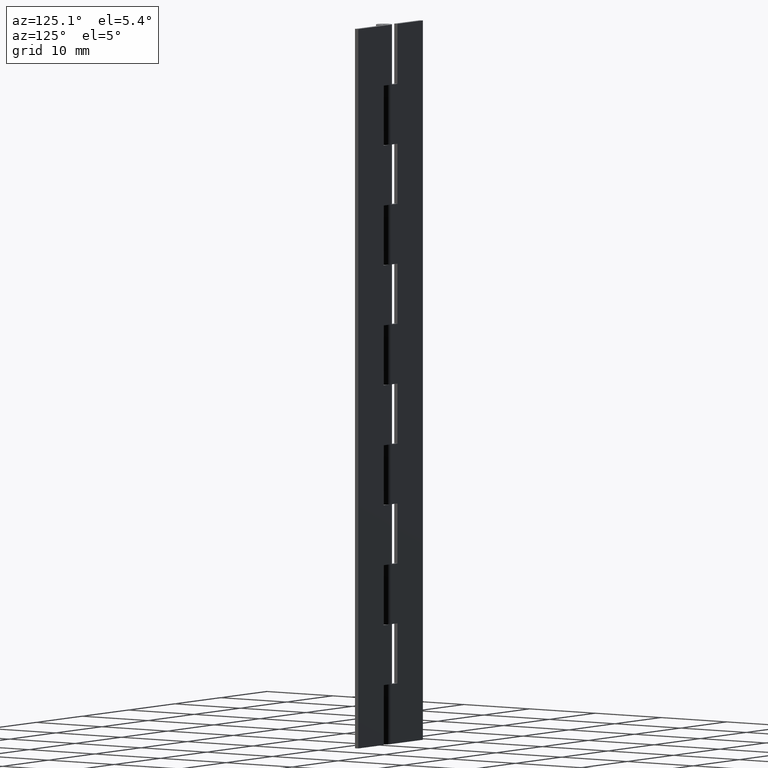
[diagram: clean part render]
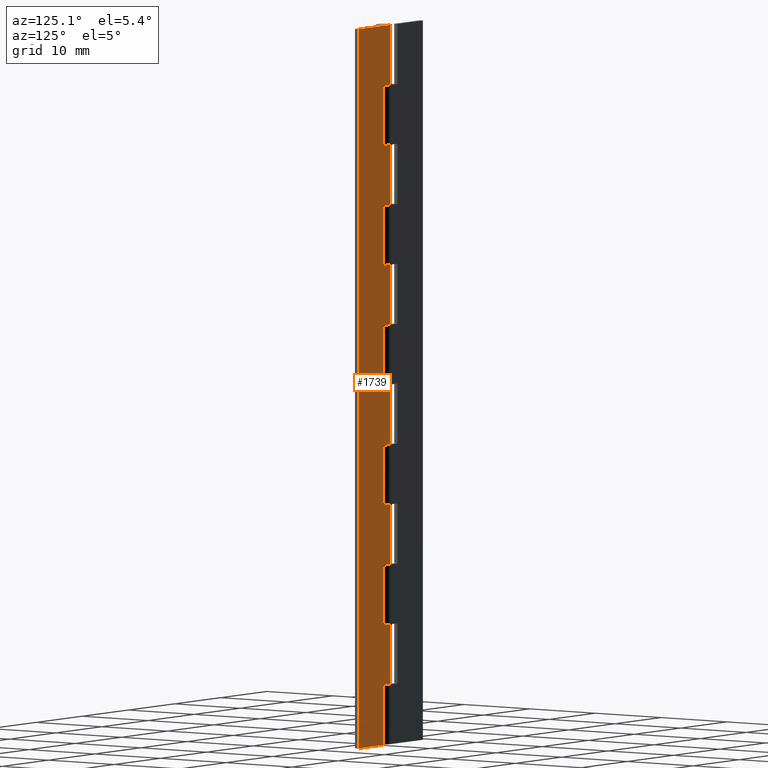
[diagram: same view with one face highlighted and labeled with its STEP entity id]
A machine part, auxiliary view. The second image highlights one B-rep face of the part: STEP entity #1739.
In plain terms, the highlighted face is a freeform B-spline surface patch.
Its self-contained STEP definition (entity closure, byte-faithful):
#51=CARTESIAN_POINT('',(0.0,1.0,82.500000000000000));
#52=VERTEX_POINT('',#51);
#72=CARTESIAN_POINT('',(1.500000000000000,1.0,82.500000000000000));
#73=VERTEX_POINT('',#72);
#74=CARTESIAN_POINT('',(1.500000000000000,1.0,82.500000000000000));
#75=CARTESIAN_POINT('',(0.0,1.0,82.500000000000000));
#76=QUASI_UNIFORM_CURVE('',1,(#74,#75),.UNSPECIFIED.,.F.,.U.);
#77=EDGE_CURVE('',#73,#52,#76,.T.);
#135=CARTESIAN_POINT('',(1.500000000000000,1.0,75.0));
#136=VERTEX_POINT('',#135);
#137=CARTESIAN_POINT('',(1.500000000000000,1.0,75.0));
#138=CARTESIAN_POINT('',(1.500000000000000,1.0,82.500000000000000));
#139=QUASI_UNIFORM_CURVE('',1,(#137,#138),.UNSPECIFIED.,.F.,.U.);
#140=EDGE_CURVE('',#136,#73,#139,.T.);
#155=CARTESIAN_POINT('',(0.0,1.0,75.0));
#156=VERTEX_POINT('',#155);
#212=CARTESIAN_POINT('',(0.0,1.0,75.0));
#213=CARTESIAN_POINT('',(1.500000000000000,1.0,75.0));
#214=QUASI_UNIFORM_CURVE('',1,(#212,#213),.UNSPECIFIED.,.F.,.U.);
#215=EDGE_CURVE('',#156,#136,#214,.T.);
#227=CARTESIAN_POINT('',(0.0,1.0,67.500000000000000));
#228=VERTEX_POINT('',#227);
#248=CARTESIAN_POINT('',(1.500000000000000,1.0,67.500000000000000));
#249=VERTEX_POINT('',#248);
#250=CARTESIAN_POINT('',(1.500000000000000,1.0,67.500000000000000));
#251=CARTESIAN_POINT('',(0.0,1.0,67.500000000000000));
#252=QUASI_UNIFORM_CURVE('',1,(#250,#251),.UNSPECIFIED.,.F.,.U.);
#253=EDGE_CURVE('',#249,#228,#252,.T.);
#311=CARTESIAN_POINT('',(1.500000000000000,1.0,60.0));
#312=VERTEX_POINT('',#311);
#313=CARTESIAN_POINT('',(1.500000000000000,1.0,60.0));
#314=CARTESIAN_POINT('',(1.500000000000000,1.0,67.500000000000000));
#315=QUASI_UNIFORM_CURVE('',1,(#313,#314),.UNSPECIFIED.,.F.,.U.);
#316=EDGE_CURVE('',#312,#249,#315,.T.);
#331=CARTESIAN_POINT('',(0.0,1.0,60.0));
#332=VERTEX_POINT('',#331);
#388=CARTESIAN_POINT('',(0.0,1.0,60.0));
#389=CARTESIAN_POINT('',(1.500000000000000,1.0,60.0));
#390=QUASI_UNIFORM_CURVE('',1,(#388,#389),.UNSPECIFIED.,.F.,.U.);
#391=EDGE_CURVE('',#332,#312,#390,.T.);
#403=CARTESIAN_POINT('',(0.0,1.0,52.500000000000000));
#404=VERTEX_POINT('',#403);
#424=CARTESIAN_POINT('',(1.500000000000000,1.0,52.500000000000000));
#425=VERTEX_POINT('',#424);
#426=CARTESIAN_POINT('',(1.500000000000000,1.0,52.500000000000000));
#427=CARTESIAN_POINT('',(0.0,1.0,52.500000000000000));
#428=QUASI_UNIFORM_CURVE('',1,(#426,#427),.UNSPECIFIED.,.F.,.U.);
#429=EDGE_CURVE('',#425,#404,#428,.T.);
#487=CARTESIAN_POINT('',(1.500000000000000,1.0,45.0));
#488=VERTEX_POINT('',#487);
#489=CARTESIAN_POINT('',(1.500000000000000,1.0,45.0));
#490=CARTESIAN_POINT('',(1.500000000000000,1.0,52.500000000000000));
#491=QUASI_UNIFORM_CURVE('',1,(#489,#490),.UNSPECIFIED.,.F.,.U.);
#492=EDGE_CURVE('',#488,#425,#491,.T.);
#507=CARTESIAN_POINT('',(0.0,1.0,45.0));
#508=VERTEX_POINT('',#507);
#564=CARTESIAN_POINT('',(0.0,1.0,45.0));
#565=CARTESIAN_POINT('',(1.500000000000000,1.0,45.0));
#566=QUASI_UNIFORM_CURVE('',1,(#564,#565),.UNSPECIFIED.,.F.,.U.);
#567=EDGE_CURVE('',#508,#488,#566,.T.);
#579=CARTESIAN_POINT('',(0.0,1.0,37.500000000000000));
#580=VERTEX_POINT('',#579);
#600=CARTESIAN_POINT('',(1.500000000000000,1.0,37.500000000000000));
#601=VERTEX_POINT('',#600);
#602=CARTESIAN_POINT('',(1.500000000000000,1.0,37.500000000000000));
#603=CARTESIAN_POINT('',(0.0,1.0,37.500000000000000));
#604=QUASI_UNIFORM_CURVE('',1,(#602,#603),.UNSPECIFIED.,.F.,.U.);
#605=EDGE_CURVE('',#601,#580,#604,.T.);
#663=CARTESIAN_POINT('',(1.500000000000000,1.0,30.0));
#664=VERTEX_POINT('',#663);
#665=CARTESIAN_POINT('',(1.500000000000000,1.0,30.0));
#666=CARTESIAN_POINT('',(1.500000000000000,1.0,37.500000000000000));
#667=QUASI_UNIFORM_CURVE('',1,(#665,#666),.UNSPECIFIED.,.F.,.U.);
#668=EDGE_CURVE('',#664,#601,#667,.T.);
#683=CARTESIAN_POINT('',(0.0,1.0,30.0));
#684=VERTEX_POINT('',#683);
#740=CARTESIAN_POINT('',(0.0,1.0,30.0));
#741=CARTESIAN_POINT('',(1.500000000000000,1.0,30.0));
#742=QUASI_UNIFORM_CURVE('',1,(#740,#741),.UNSPECIFIED.,.F.,.U.);
#743=EDGE_CURVE('',#684,#664,#742,.T.);
#755=CARTESIAN_POINT('',(0.0,1.0,22.500000000000000));
#756=VERTEX_POINT('',#755);
#776=CARTESIAN_POINT('',(1.500000000000000,1.0,22.500000000000000));
#777=VERTEX_POINT('',#776);
#778=CARTESIAN_POINT('',(1.500000000000000,1.0,22.500000000000000));
#779=CARTESIAN_POINT('',(0.0,1.0,22.500000000000000));
#780=QUASI_UNIFORM_CURVE('',1,(#778,#779),.UNSPECIFIED.,.F.,.U.);
#781=EDGE_CURVE('',#777,#756,#780,.T.);
#839=CARTESIAN_POINT('',(1.500000000000000,1.0,15.0));
#840=VERTEX_POINT('',#839);
#841=CARTESIAN_POINT('',(1.500000000000000,1.0,15.0));
#842=CARTESIAN_POINT('',(1.500000000000000,1.0,22.500000000000000));
#843=QUASI_UNIFORM_CURVE('',1,(#841,#842),.UNSPECIFIED.,.F.,.U.);
#844=EDGE_CURVE('',#840,#777,#843,.T.);
#859=CARTESIAN_POINT('',(0.0,1.0,15.0));
#860=VERTEX_POINT('',#859);
#916=CARTESIAN_POINT('',(0.0,1.0,15.0));
#917=CARTESIAN_POINT('',(1.500000000000000,1.0,15.0));
#918=QUASI_UNIFORM_CURVE('',1,(#916,#917),.UNSPECIFIED.,.F.,.U.);
#919=EDGE_CURVE('',#860,#840,#918,.T.);
#938=CARTESIAN_POINT('',(1.500000000000000,1.0,7.500000000000000));
#939=VERTEX_POINT('',#938);
#945=CARTESIAN_POINT('',(1.500000000000000,1.0,0.0));
#946=VERTEX_POINT('',#945);
#947=CARTESIAN_POINT('',(1.500000000000000,1.0,0.0));
#948=CARTESIAN_POINT('',(1.500000000000000,1.0,7.500000000000000));
#949=QUASI_UNIFORM_CURVE('',1,(#947,#948),.UNSPECIFIED.,.F.,.U.);
#950=EDGE_CURVE('',#946,#939,#949,.T.);
#967=CARTESIAN_POINT('',(0.0,1.0,7.500000000000000));
#968=VERTEX_POINT('',#967);
#988=CARTESIAN_POINT('',(1.500000000000000,1.0,7.500000000000000));
#989=CARTESIAN_POINT('',(0.0,1.0,7.500000000000000));
#990=QUASI_UNIFORM_CURVE('',1,(#988,#989),.UNSPECIFIED.,.F.,.U.);
#991=EDGE_CURVE('',#939,#968,#990,.T.);
#1037=CARTESIAN_POINT('',(7.0,1.0,90.0));
#1038=VERTEX_POINT('',#1037);
#1044=CARTESIAN_POINT('',(0.0,1.0,90.0));
#1045=VERTEX_POINT('',#1044);
#1046=CARTESIAN_POINT('',(7.0,1.0,90.0));
#1047=CARTESIAN_POINT('',(0.0,1.0,90.0));
#1048=QUASI_UNIFORM_CURVE('',1,(#1046,#1047),.UNSPECIFIED.,.F.,.U.);
#1049=EDGE_CURVE('',#1038,#1045,#1048,.T.);
#1115=CARTESIAN_POINT('',(7.0,1.0,0.0));
#1116=VERTEX_POINT('',#1115);
#1122=CARTESIAN_POINT('',(7.0,1.0,90.0));
#1123=CARTESIAN_POINT('',(7.0,1.0,0.0));
#1124=QUASI_UNIFORM_CURVE('',1,(#1122,#1123),.UNSPECIFIED.,.F.,.U.);
#1125=EDGE_CURVE('',#1038,#1116,#1124,.T.);
#1142=CARTESIAN_POINT('',(7.0,1.0,0.0));
#1143=CARTESIAN_POINT('',(1.500000000000000,1.0,0.0));
#1144=QUASI_UNIFORM_CURVE('',1,(#1142,#1143),.UNSPECIFIED.,.F.,.U.);
#1145=EDGE_CURVE('',#1116,#946,#1144,.T.);
#1232=CARTESIAN_POINT('',(0.0,1.0,15.0));
#1233=CARTESIAN_POINT('',(0.0,1.0,7.500000000000000));
#1234=QUASI_UNIFORM_CURVE('',1,(#1232,#1233),.UNSPECIFIED.,.F.,.U.);
#1235=EDGE_CURVE('',#860,#968,#1234,.T.);
#1318=CARTESIAN_POINT('',(0.0,1.0,30.0));
#1319=CARTESIAN_POINT('',(0.0,1.0,22.500000000000000));
#1320=QUASI_UNIFORM_CURVE('',1,(#1318,#1319),.UNSPECIFIED.,.F.,.U.);
#1321=EDGE_CURVE('',#684,#756,#1320,.T.);
#1404=CARTESIAN_POINT('',(0.0,1.0,45.0));
#1405=CARTESIAN_POINT('',(0.0,1.0,37.500000000000000));
#1406=QUASI_UNIFORM_CURVE('',1,(#1404,#1405),.UNSPECIFIED.,.F.,.U.);
#1407=EDGE_CURVE('',#508,#580,#1406,.T.);
#1490=CARTESIAN_POINT('',(0.0,1.0,60.0));
#1491=CARTESIAN_POINT('',(0.0,1.0,52.500000000000000));
#1492=QUASI_UNIFORM_CURVE('',1,(#1490,#1491),.UNSPECIFIED.,.F.,.U.);
#1493=EDGE_CURVE('',#332,#404,#1492,.T.);
#1665=CARTESIAN_POINT('',(0.0,1.0,90.0));
#1666=CARTESIAN_POINT('',(0.0,1.0,82.500000000000000));
#1667=QUASI_UNIFORM_CURVE('',1,(#1665,#1666),.UNSPECIFIED.,.F.,.U.);
#1668=EDGE_CURVE('',#1045,#52,#1667,.T.);
#1696=CARTESIAN_POINT('',(0.0,1.0,75.0));
#1697=CARTESIAN_POINT('',(0.0,1.0,67.500000000000000));
#1698=QUASI_UNIFORM_CURVE('',1,(#1696,#1697),.UNSPECIFIED.,.F.,.U.);
#1699=EDGE_CURVE('',#156,#228,#1698,.T.);
#1706=CARTESIAN_POINT('',(-0.349649986432642,1.0,94.495499825562533));
#1707=CARTESIAN_POINT('',(-0.349649986432642,1.0,-4.495502239550651));
#1708=CARTESIAN_POINT('',(7.349650174187273,1.0,94.495499825562533));
#1709=CARTESIAN_POINT('',(7.349650174187273,1.0,-4.495502239550651));
#1710=B_SPLINE_SURFACE_WITH_KNOTS('',1,1,((#1706,#1708),(#1707,#1709)),.UNSPECIFIED.,.F.,.F.,.U.,(2,2),(2,2),(0.0,98.991002065113179),(0.0,7.699300160619915),.UNSPECIFIED.);
#1711=ORIENTED_EDGE('',*,*,#215,.T.);
#1712=ORIENTED_EDGE('',*,*,#140,.T.);
#1713=ORIENTED_EDGE('',*,*,#77,.T.);
#1714=ORIENTED_EDGE('',*,*,#1668,.F.);
#1715=ORIENTED_EDGE('',*,*,#1049,.F.);
#1716=ORIENTED_EDGE('',*,*,#1125,.T.);
#1717=ORIENTED_EDGE('',*,*,#1145,.T.);
#1718=ORIENTED_EDGE('',*,*,#950,.T.);
#1719=ORIENTED_EDGE('',*,*,#991,.T.);
#1720=ORIENTED_EDGE('',*,*,#1235,.F.);
#1721=ORIENTED_EDGE('',*,*,#919,.T.);
#1722=ORIENTED_EDGE('',*,*,#844,.T.);
#1723=ORIENTED_EDGE('',*,*,#781,.T.);
#1724=ORIENTED_EDGE('',*,*,#1321,.F.);
#1725=ORIENTED_EDGE('',*,*,#743,.T.);
#1726=ORIENTED_EDGE('',*,*,#668,.T.);
#1727=ORIENTED_EDGE('',*,*,#605,.T.);
#1728=ORIENTED_EDGE('',*,*,#1407,.F.);
#1729=ORIENTED_EDGE('',*,*,#567,.T.);
#1730=ORIENTED_EDGE('',*,*,#492,.T.);
#1731=ORIENTED_EDGE('',*,*,#429,.T.);
#1732=ORIENTED_EDGE('',*,*,#1493,.F.);
#1733=ORIENTED_EDGE('',*,*,#391,.T.);
#1734=ORIENTED_EDGE('',*,*,#316,.T.);
#1735=ORIENTED_EDGE('',*,*,#253,.T.);
#1736=ORIENTED_EDGE('',*,*,#1699,.F.);
#1737=EDGE_LOOP('',(#1711,#1712,#1713,#1714,#1715,#1716,#1717,#1718,#1719,#1720,#1721,#1722,#1723,#1724,#1725,#1726,#1727,#1728,#1729,#1730,#1731,#1732,#1733,#1734,#1735,#1736));
#1738=FACE_OUTER_BOUND('',#1737,.T.);
#1739=ADVANCED_FACE('',(#1738),#1710,.F.);